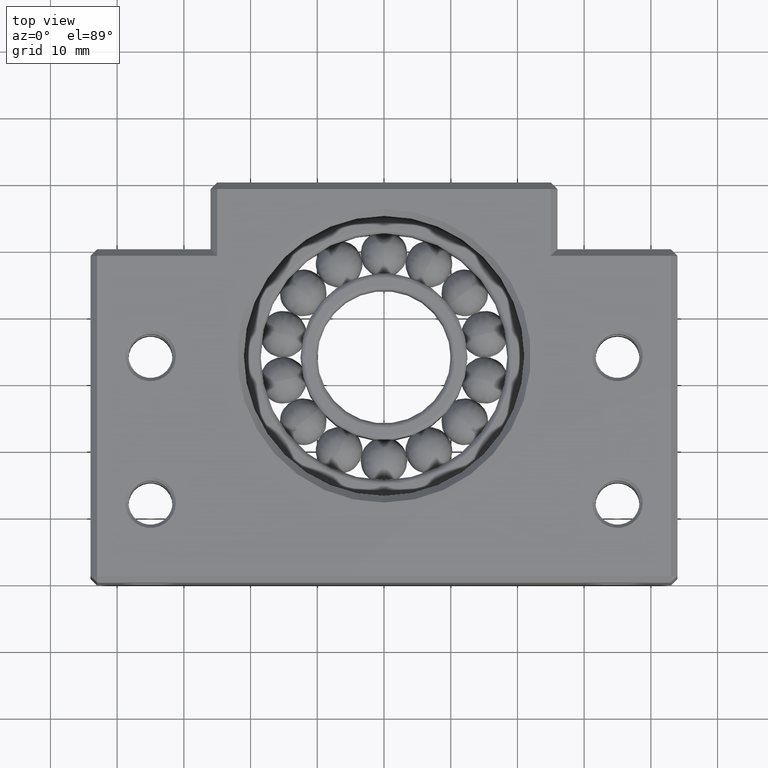
[diagram: clean part render]
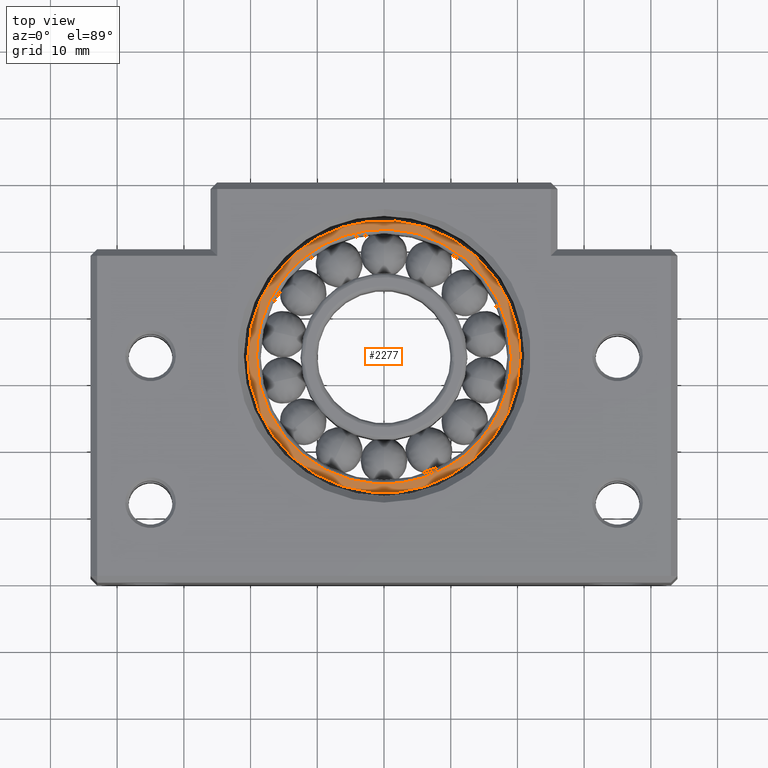
[diagram: same view with one face highlighted and labeled with its STEP entity id]
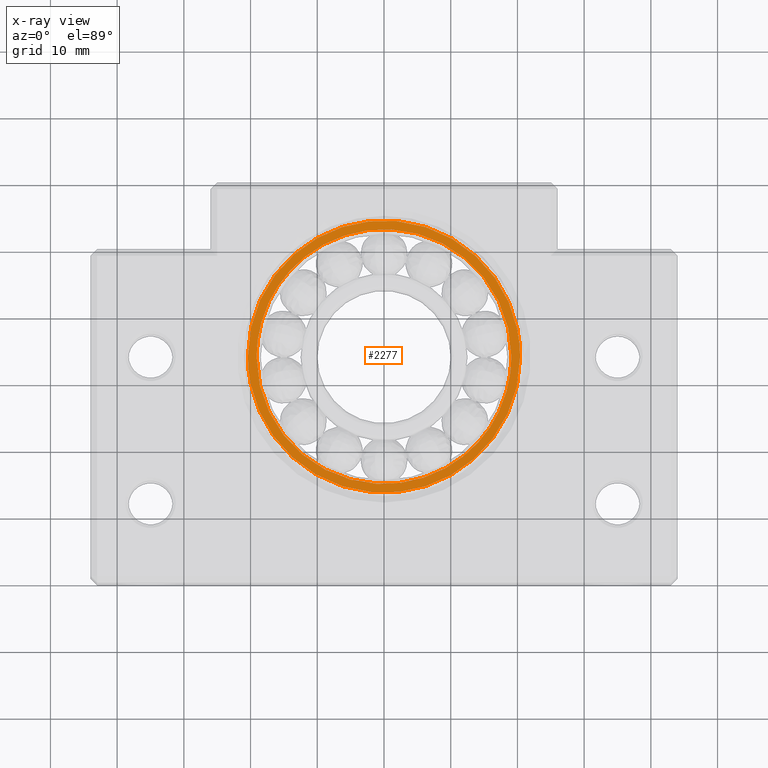
[diagram: x-ray of the same camera — body ghosted, the highlighted face saturated]
A machine part, top view. The second image highlights one B-rep face of the part: STEP entity #2277.
The next image is the same camera in x-ray: the body ghosted, the highlighted face saturated — about 0% of this face is hidden behind the body in this view.
In plain terms, the highlighted planar face has unit normal (0, 0, -1).
Its self-contained STEP definition (entity closure, byte-faithful):
#560 = ORIENTED_EDGE ( 'NONE', *, *, #5075, .F. ) ;
#700 =( BOUNDED_CURVE ( )  B_SPLINE_CURVE ( 3, ( #831, #1809, #1013, #1999 ),
 .UNSPECIFIED., .F., .F. ) 
 B_SPLINE_CURVE_WITH_KNOTS ( ( 4, 4 ),
 ( 0.0000000000000000000, 1.000000000000000000 ),
 .UNSPECIFIED. ) 
 CURVE ( )  GEOMETRIC_REPRESENTATION_ITEM ( )  RATIONAL_B_SPLINE_CURVE ( ( 1.000000000000000000, 0.3333333333333333700, 0.3333333333333333700, 1.000000000000000000 ) ) 
 REPRESENTATION_ITEM ( '' )  );
#805 = ORIENTED_EDGE ( 'NONE', *, *, #3004, .F. ) ;
#808 = ORIENTED_EDGE ( 'NONE', *, *, #4876, .F. ) ;
#831 = CARTESIAN_POINT ( 'NONE',  ( 20.40000000000001600, 34.00000000000000000, 5.999999999999998200 ) ) ;
#899 = CARTESIAN_POINT ( 'NONE',  ( 19.10000000000001200, 34.00000000000000000, 5.999999999999998200 ) ) ;
#1013 = CARTESIAN_POINT ( 'NONE',  ( -20.39999999999999100, -6.799999999999993600, 5.999999999999998200 ) ) ;
#1168 = FACE_OUTER_BOUND ( 'NONE', #3460, .T. ) ;
#1305 = FACE_BOUND ( 'NONE', #3195, .T. ) ;
#1356 = CARTESIAN_POINT ( 'NONE',  ( -19.09999999999998400, 34.00000000000000000, 5.999999999999998200 ) ) ;
#1395 =( BOUNDED_CURVE ( )  B_SPLINE_CURVE ( 3, ( #2631, #4029, #3990, #4049 ),
 .UNSPECIFIED., .F., .F. ) 
 B_SPLINE_CURVE_WITH_KNOTS ( ( 4, 4 ),
 ( 0.0000000000000000000, 1.000000000000000000 ),
 .UNSPECIFIED. ) 
 CURVE ( )  GEOMETRIC_REPRESENTATION_ITEM ( )  RATIONAL_B_SPLINE_CURVE ( ( 1.000000000000000000, 0.3333333333333333700, 0.3333333333333333700, 1.000000000000000000 ) ) 
 REPRESENTATION_ITEM ( '' )  );
#1410 = CARTESIAN_POINT ( 'NONE',  ( -20.39999999999998800, 34.00000000000000000, 5.999999999999998200 ) ) ;
#1422 = CARTESIAN_POINT ( 'NONE',  ( -20.39999999999998400, 74.80000000000001100, 5.999999999999998200 ) ) ;
#1430 = CARTESIAN_POINT ( 'NONE',  ( 20.40000000000001600, 74.80000000000001100, 5.999999999999998200 ) ) ;
#1434 = CARTESIAN_POINT ( 'NONE',  ( 20.40000000000001600, 34.00000000000000000, 5.999999999999998200 ) ) ;
#1654 = ORIENTED_EDGE ( 'NONE', *, *, #3260, .F. ) ;
#1693 = CARTESIAN_POINT ( 'NONE',  ( 19.10000000000001200, 72.19999999999997400, 5.999999999999998200 ) ) ;
#1697 = CARTESIAN_POINT ( 'NONE',  ( 19.10000000000001200, 34.00000000000000000, 5.999999999999998200 ) ) ;
#1725 = CARTESIAN_POINT ( 'NONE',  ( -19.09999999999998000, 72.19999999999997400, 5.999999999999998200 ) ) ;
#1726 = CARTESIAN_POINT ( 'NONE',  ( -19.09999999999998400, 34.00000000000000000, 5.999999999999998200 ) ) ;
#1809 = CARTESIAN_POINT ( 'NONE',  ( 20.40000000000001600, -6.799999999999993600, 5.999999999999998200 ) ) ;
#1849 = AXIS2_PLACEMENT_3D ( 'NONE', #2031, #1940, #1921 ) ;
#1852 = VERTEX_POINT ( 'NONE', #4640 ) ;
#1921 = DIRECTION ( 'NONE',  ( -1.000000000000000000, 0.0000000000000000000, -0.0000000000000000000 ) ) ;
#1940 = DIRECTION ( 'NONE',  ( 0.0000000000000000000, 0.0000000000000000000, -1.000000000000000000 ) ) ;
#1999 = CARTESIAN_POINT ( 'NONE',  ( -20.39999999999998800, 34.00000000000000000, 5.999999999999998200 ) ) ;
#2031 = CARTESIAN_POINT ( 'NONE',  ( 1.377740456500814400E-014, 54.40000000000000600, 5.999999999999998200 ) ) ;
#2069 = PLANE ( 'NONE',  #1849 ) ;
#2277 = ADVANCED_FACE ( 'NONE', ( #1168, #1305 ), #2069, .F. ) ;
#2631 = CARTESIAN_POINT ( 'NONE',  ( -19.09999999999998400, 34.00000000000000000, 5.999999999999998200 ) ) ;
#2698 = VERTEX_POINT ( 'NONE', #899 ) ;
#2989 = VERTEX_POINT ( 'NONE', #1356 ) ;
#3004 = EDGE_CURVE ( 'NONE', #3495, #1852, #3563, .T. ) ;
#3195 = EDGE_LOOP ( 'NONE', ( #560, #1654 ) ) ;
#3260 = EDGE_CURVE ( 'NONE', #2698, #2989, #4497, .T. ) ;
#3460 = EDGE_LOOP ( 'NONE', ( #808, #805 ) ) ;
#3495 = VERTEX_POINT ( 'NONE', #4018 ) ;
#3563 =( BOUNDED_CURVE ( )  B_SPLINE_CURVE ( 3, ( #1410, #1422, #1430, #1434 ),
 .UNSPECIFIED., .F., .F. ) 
 B_SPLINE_CURVE_WITH_KNOTS ( ( 4, 4 ),
 ( 0.0000000000000000000, 1.000000000000000000 ),
 .UNSPECIFIED. ) 
 CURVE ( )  GEOMETRIC_REPRESENTATION_ITEM ( )  RATIONAL_B_SPLINE_CURVE ( ( 1.000000000000000000, 0.3333333333333333700, 0.3333333333333333700, 1.000000000000000000 ) ) 
 REPRESENTATION_ITEM ( '' )  );
#3990 = CARTESIAN_POINT ( 'NONE',  ( 19.10000000000001200, -4.199999999999988600, 5.999999999999998200 ) ) ;
#4018 = CARTESIAN_POINT ( 'NONE',  ( -20.39999999999998800, 34.00000000000000000, 5.999999999999998200 ) ) ;
#4029 = CARTESIAN_POINT ( 'NONE',  ( -19.09999999999998700, -4.199999999999988600, 5.999999999999998200 ) ) ;
#4049 = CARTESIAN_POINT ( 'NONE',  ( 19.10000000000001200, 34.00000000000000000, 5.999999999999998200 ) ) ;
#4497 =( BOUNDED_CURVE ( )  B_SPLINE_CURVE ( 3, ( #1697, #1693, #1725, #1726 ),
 .UNSPECIFIED., .F., .F. ) 
 B_SPLINE_CURVE_WITH_KNOTS ( ( 4, 4 ),
 ( 0.0000000000000000000, 1.000000000000000000 ),
 .UNSPECIFIED. ) 
 CURVE ( )  GEOMETRIC_REPRESENTATION_ITEM ( )  RATIONAL_B_SPLINE_CURVE ( ( 1.000000000000000000, 0.3333333333333333700, 0.3333333333333333700, 1.000000000000000000 ) ) 
 REPRESENTATION_ITEM ( '' )  );
#4640 = CARTESIAN_POINT ( 'NONE',  ( 20.40000000000001600, 34.00000000000000000, 5.999999999999998200 ) ) ;
#4876 = EDGE_CURVE ( 'NONE', #1852, #3495, #700, .T. ) ;
#5075 = EDGE_CURVE ( 'NONE', #2989, #2698, #1395, .T. ) ;